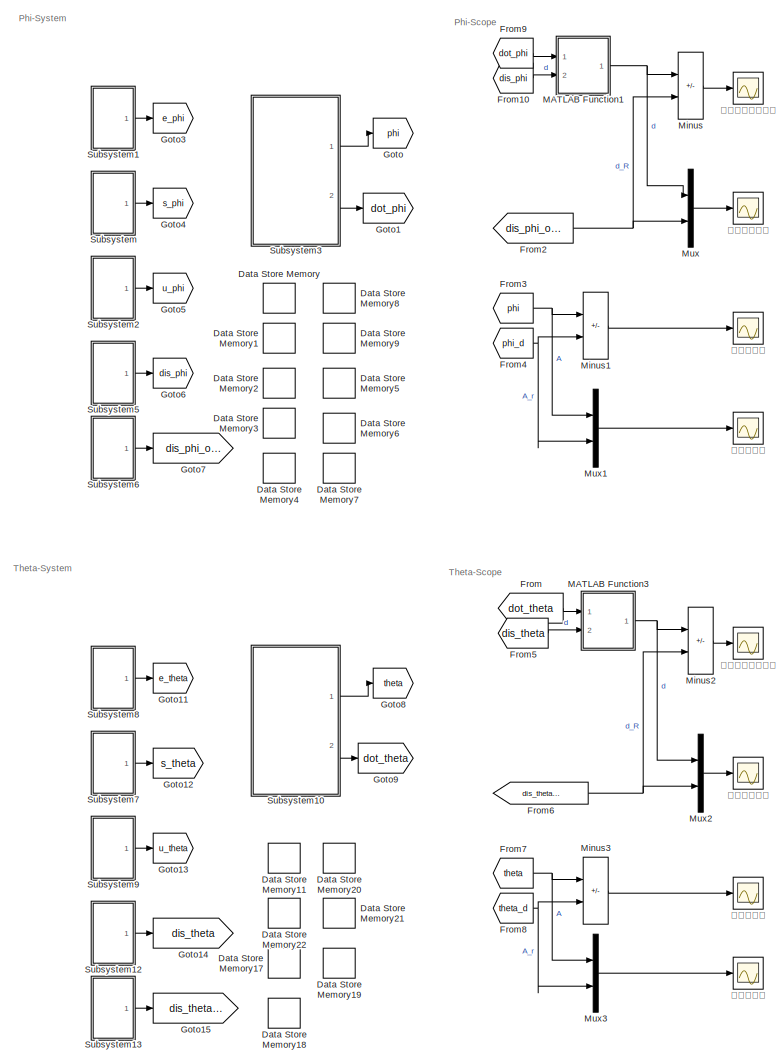
[diagram: root canvas - part 1/2, left side, full height]
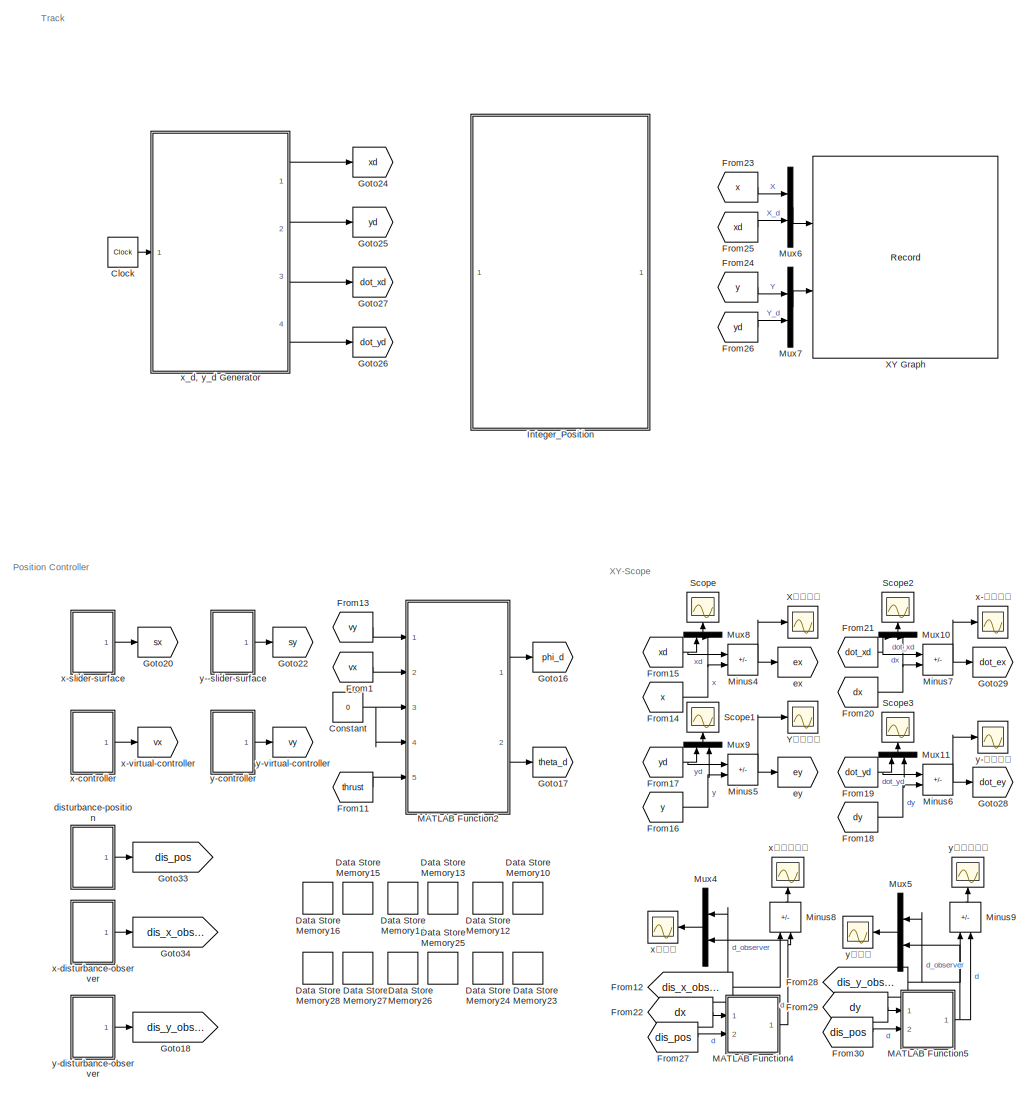
[diagram: root canvas - part 2/2, right side, full height]
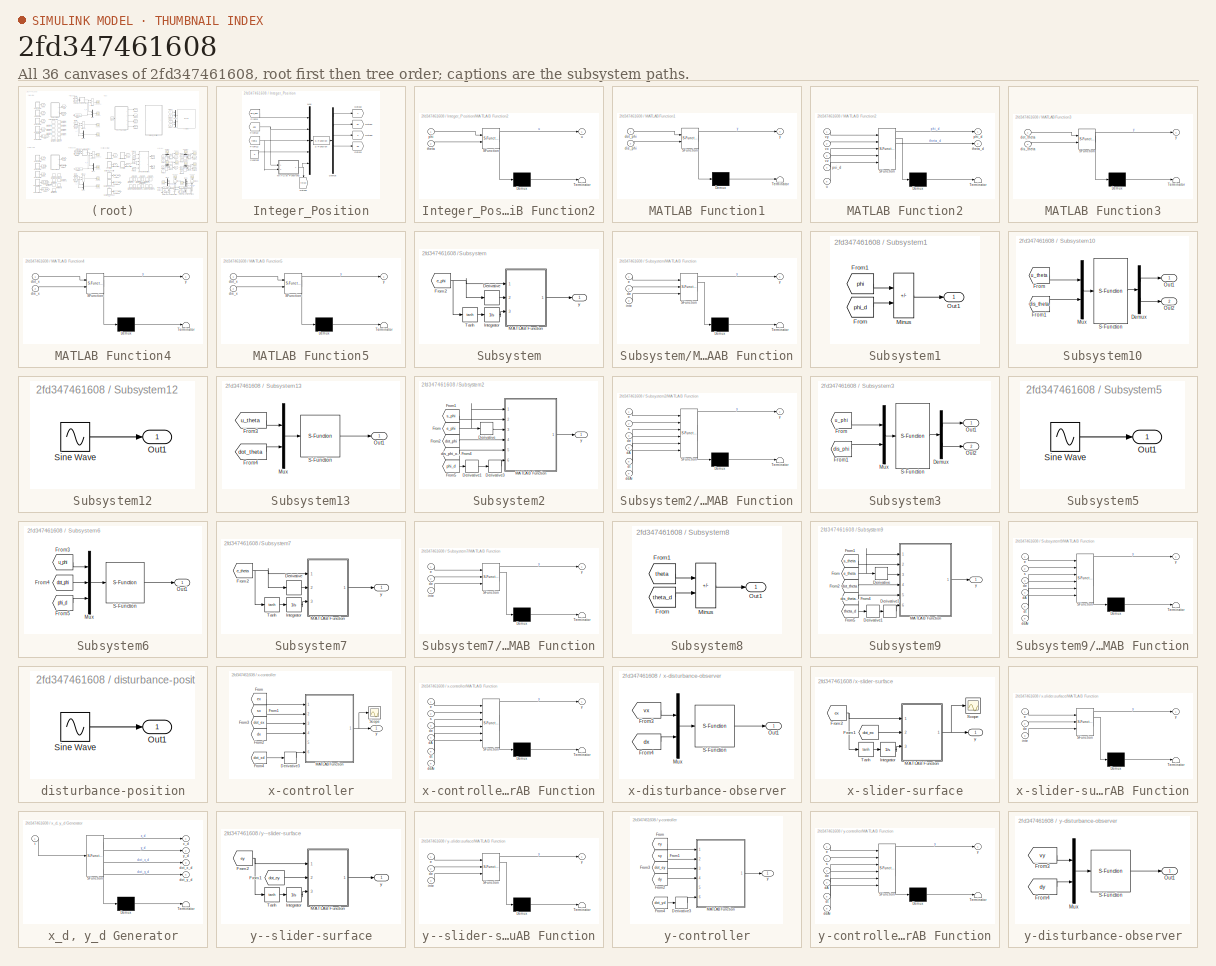
[diagram: thumbnail index - all 36 canvases of the model, root first then tree order]
MODEL slx_2fd347461608
KIND model
CONFIG AbsTol = auto
CONFIG EnableMultiTasking = off
CONFIG FixedStep = 0.01
CONFIG MaxStep = auto
CONFIG MinStep = auto
CONFIG RelTol = 1e-3
CONFIG SampleTimeConstraint = Unconstrained
CONFIG SolverName = ode4
CONFIG StartTime = 0.0
CONFIG StopTime = 25
BLOCK [Clock] Clock
  DisplayTime = on
BLOCK [Constant] Constant
  Value = 0
BLOCK [DataStoreMemory] Data Store Memory
  DataStoreName = K0
  InitialValue = 0.01
  OutDataTypeStr = double
  ReadBeforeWriteMsg = warning
  ShowAdditionalParam = off
  SignalType = real
  WriteAfterReadMsg = warning
  WriteAfterWriteMsg = warning
BLOCK [DataStoreMemory] Data Store Memory1
  DataStoreName = J
  InitialValue = 0.005309688
  OutDataTypeStr = double
  ReadBeforeWriteMsg = warning
  ShowAdditionalParam = off
  SignalType = real
  WriteAfterReadMsg = warning
  WriteAfterWriteMsg = warning
BLOCK [DataStoreMemory] Data Store Memory10
  DataStoreName = xkp
  InitialValue = 1
  NameLocation = left
  OutDataTypeStr = double
  ReadBeforeWriteMsg = warning
  ShowAdditionalParam = off
  SignalType = real
  WriteAfterReadMsg = warning
  WriteAfterWriteMsg = warning
BLOCK [DataStoreMemory] Data Store Memory11
  DataStoreName = J1
  InitialValue = 0.00577
  OutDataTypeStr = double
  ReadBeforeWriteMsg = warning
  ShowAdditionalParam = off
  SignalType = real
  WriteAfterReadMsg = warning
  WriteAfterWriteMsg = warning
BLOCK [DataStoreMemory] Data Store Memory12
  DataStoreName = xki
  NameLocation = left
  OutDataTypeStr = double
  ReadBeforeWriteMsg = warning
  ShowAdditionalParam = off
  SignalType = real
  WriteAfterReadMsg = warning
  WriteAfterWriteMsg = warning
BLOCK [DataStoreMemory] Data Store Memory13
  DataStoreName = xkd
  InitialValue = 1
  NameLocation = left
  OutDataTypeStr = double
  ReadBeforeWriteMsg = warning
  ShowAdditionalParam = off
  SignalType = real
  WriteAfterReadMsg = warning
  WriteAfterWriteMsg = warning
BLOCK [DataStoreMemory] Data Store Memory14
  DataStoreName = xk1
  InitialValue = 1
  NameLocation = left
  OutDataTypeStr = double
  ReadBeforeWriteMsg = warning
  ShowAdditionalParam = off
  SignalType = real
  WriteAfterReadMsg = warning
  WriteAfterWriteMsg = warning
BLOCK [DataStoreMemory] Data Store Memory15
  DataStoreName = xk2
  InitialValue = 100
  NameLocation = left
  OutDataTypeStr = double
  ReadBeforeWriteMsg = warning
  ShowAdditionalParam = off
  SignalType = real
  WriteAfterReadMsg = warning
  WriteAfterWriteMsg = warning
BLOCK [DataStoreMemory] Data Store Memory16
  DataStoreName = xk3
  NameLocation = left
  OutDataTypeStr = double
  ReadBeforeWriteMsg = warning
  ShowAdditionalParam = off
  SignalType = real
  WriteAfterReadMsg = warning
  WriteAfterWriteMsg = warning
BLOCK [DataStoreMemory] Data Store Memory17
  DataStoreName = ki1
  InitialValue = 0.01
  OutDataTypeStr = double
  ReadBeforeWriteMsg = warning
  ShowAdditionalParam = off
  SignalType = real
  WriteAfterReadMsg = warning
  WriteAfterWriteMsg = warning
BLOCK [DataStoreMemory] Data Store Memory18
  DataStoreName = kd1
  InitialValue = 1
  OutDataTypeStr = double
  ReadBeforeWriteMsg = warning
  ShowAdditionalParam = off
  SignalType = real
  WriteAfterReadMsg = warning
  WriteAfterWriteMsg = warning
BLOCK [DataStoreMemory] Data Store Memory19
  DataStoreName = k11
  InitialValue = 1
  OutDataTypeStr = double
  ReadBeforeWriteMsg = warning
  ShowAdditionalParam = off
  SignalType = real
  WriteAfterReadMsg = warning
  WriteAfterWriteMsg = warning
BLOCK [DataStoreMemory] Data Store Memory2
  DataStoreName = l
  InitialValue = 0.33/sqrt(2)
  OutDataTypeStr = double
  ReadBeforeWriteMsg = warning
  ShowAdditionalParam = off
  SignalType = real
  WriteAfterReadMsg = warning
  WriteAfterWriteMsg = warning
BLOCK [DataStoreMemory] Data Store Memory20
  DataStoreName = k21
  InitialValue = 5
  OutDataTypeStr = double
  ReadBeforeWriteMsg = warning
  ShowAdditionalParam = off
  SignalType = real
  WriteAfterReadMsg = warning
  WriteAfterWriteMsg = warning
BLOCK [DataStoreMemory] Data Store Memory21
  DataStoreName = k31
  InitialValue = 0.001
  OutDataTypeStr = double
  ReadBeforeWriteMsg = warning
  ShowAdditionalParam = off
  SignalType = real
  WriteAfterReadMsg = warning
  WriteAfterWriteMsg = warning
BLOCK [DataStoreMemory] Data Store Memory22
  DataStoreName = kp1
  InitialValue = 30
  OutDataTypeStr = double
  ReadBeforeWriteMsg = warning
  ShowAdditionalParam = off
  SignalType = real
  WriteAfterReadMsg = warning
  WriteAfterWriteMsg = warning
BLOCK [DataStoreMemory] Data Store Memory23
  DataStoreName = ykp
  InitialValue = 1
  NameLocation = left
  OutDataTypeStr = double
  ReadBeforeWriteMsg = warning
  ShowAdditionalParam = off
  SignalType = real
  WriteAfterReadMsg = warning
  WriteAfterWriteMsg = warning
BLOCK [DataStoreMemory] Data Store Memory24
  DataStoreName = yki
  NameLocation = left
  OutDataTypeStr = double
  ReadBeforeWriteMsg = warning
  ShowAdditionalParam = off
  SignalType = real
  WriteAfterReadMsg = warning
  WriteAfterWriteMsg = warning
BLOCK [DataStoreMemory] Data Store Memory25
  DataStoreName = ykd
  InitialValue = 1
  NameLocation = left
  OutDataTypeStr = double
  ReadBeforeWriteMsg = warning
  ShowAdditionalParam = off
  SignalType = real
  WriteAfterReadMsg = warning
  WriteAfterWriteMsg = warning
BLOCK [DataStoreMemory] Data Store Memory26
  DataStoreName = yk1
  InitialValue = 1
  NameLocation = left
  OutDataTypeStr = double
  ReadBeforeWriteMsg = warning
  ShowAdditionalParam = off
  SignalType = real
  WriteAfterReadMsg = warning
  WriteAfterWriteMsg = warning
BLOCK [DataStoreMemory] Data Store Memory27
  DataStoreName = yk2
  InitialValue = 100
  NameLocation = left
  OutDataTypeStr = double
  ReadBeforeWriteMsg = warning
  ShowAdditionalParam = off
  SignalType = real
  WriteAfterReadMsg = warning
  WriteAfterWriteMsg = warning
BLOCK [DataStoreMemory] Data Store Memory28
  DataStoreName = yk3
  NameLocation = left
  OutDataTypeStr = double
  ReadBeforeWriteMsg = warning
  ShowAdditionalParam = off
  SignalType = real
  WriteAfterReadMsg = warning
  WriteAfterWriteMsg = warning
BLOCK [DataStoreMemory] Data Store Memory3
  DataStoreName = pi
  InitialValue = 3.1415926
  OutDataTypeStr = double
  ReadBeforeWriteMsg = warning
  ShowAdditionalParam = off
  SignalType = real
  WriteAfterReadMsg = warning
  WriteAfterWriteMsg = warning
BLOCK [DataStoreMemory] Data Store Memory4
  DataStoreName = kp
  InitialValue = 30
  OutDataTypeStr = double
  ReadBeforeWriteMsg = warning
  ShowAdditionalParam = off
  SignalType = real
  WriteAfterReadMsg = warning
  WriteAfterWriteMsg = warning
BLOCK [DataStoreMemory] Data Store Memory5
  DataStoreName = ki
  InitialValue = 0.01
  OutDataTypeStr = double
  ReadBeforeWriteMsg = warning
  ShowAdditionalParam = off
  SignalType = real
  WriteAfterReadMsg = warning
  WriteAfterWriteMsg = warning
BLOCK [DataStoreMemory] Data Store Memory6
  DataStoreName = kd
  InitialValue = 1
  OutDataTypeStr = double
  ReadBeforeWriteMsg = warning
  ShowAdditionalParam = off
  SignalType = real
  WriteAfterReadMsg = warning
  WriteAfterWriteMsg = warning
BLOCK [DataStoreMemory] Data Store Memory7
  DataStoreName = k1
  InitialValue = 1
  OutDataTypeStr = double
  ReadBeforeWriteMsg = warning
  ShowAdditionalParam = off
  SignalType = real
  WriteAfterReadMsg = warning
  WriteAfterWriteMsg = warning
BLOCK [DataStoreMemory] Data Store Memory8
  DataStoreName = k2
  InitialValue = 5
  OutDataTypeStr = double
  ReadBeforeWriteMsg = warning
  ShowAdditionalParam = off
  SignalType = real
  WriteAfterReadMsg = warning
  WriteAfterWriteMsg = warning
BLOCK [DataStoreMemory] Data Store Memory9
  DataStoreName = k3
  InitialValue = 0.001
  OutDataTypeStr = double
  ReadBeforeWriteMsg = warning
  ShowAdditionalParam = off
  SignalType = real
  WriteAfterReadMsg = warning
  WriteAfterWriteMsg = warning
BLOCK [From] From
  GotoTag = dot_theta
  TagVisibility = global
BLOCK [From] From1
  GotoTag = vx
  TagVisibility = global
BLOCK [From] From10
  GotoTag = dis_phi
  TagVisibility = global
BLOCK [From] From11
  GotoTag = thrust
  TagVisibility = global
BLOCK [From] From12
  GotoTag = dis_x_observer
  TagVisibility = global
BLOCK [From] From13
  GotoTag = vy
  TagVisibility = global
BLOCK [From] From14
  GotoTag = x
  TagVisibility = global
BLOCK [From] From15
  GotoTag = xd
  TagVisibility = global
BLOCK [From] From16
  GotoTag = y
  TagVisibility = global
BLOCK [From] From17
  GotoTag = yd
  TagVisibility = global
BLOCK [From] From18
  GotoTag = dy
  TagVisibility = global
BLOCK [From] From19
  GotoTag = dot_yd
  TagVisibility = global
BLOCK [From] From2
  GotoTag = dis_phi_observer
  TagVisibility = global
BLOCK [From] From20
  GotoTag = dx
  TagVisibility = global
BLOCK [From] From21
  GotoTag = dot_xd
  TagVisibility = global
BLOCK [From] From22
  GotoTag = dx
  TagVisibility = global
BLOCK [From] From23
  GotoTag = x
  TagVisibility = global
BLOCK [From] From24
  GotoTag = y
  TagVisibility = global
BLOCK [From] From25
  GotoTag = xd
  TagVisibility = global
BLOCK [From] From26
  GotoTag = yd
  TagVisibility = global
BLOCK [From] From27
  GotoTag = dis_pos
  TagVisibility = global
BLOCK [From] From28
  GotoTag = dis_y_observer
  TagVisibility = global
BLOCK [From] From29
  GotoTag = dy
  TagVisibility = global
BLOCK [From] From3
  GotoTag = phi
  TagVisibility = global
BLOCK [From] From30
  GotoTag = dis_pos
  TagVisibility = global
BLOCK [From] From4
  GotoTag = phi_d
  TagVisibility = global
BLOCK [From] From5
  GotoTag = dis_theta
  TagVisibility = global
BLOCK [From] From6
  GotoTag = dis_theta_observer
  TagVisibility = global
BLOCK [From] From7
  GotoTag = theta
  TagVisibility = global
BLOCK [From] From8
  GotoTag = theta_d
  TagVisibility = global
BLOCK [From] From9
  GotoTag = dot_phi
  TagVisibility = global
BLOCK [Goto] Goto
  GotoTag = phi
  TagVisibility = global
BLOCK [Goto] Goto1
  GotoTag = dot_phi
  TagVisibility = global
BLOCK [Goto] Goto11
  GotoTag = e_theta
  TagVisibility = global
BLOCK [Goto] Goto12
  GotoTag = s_theta
  TagVisibility = global
BLOCK [Goto] Goto13
  GotoTag = u_theta
  TagVisibility = global
BLOCK [Goto] Goto14
  GotoTag = dis_theta
  TagVisibility = global
BLOCK [Goto] Goto15
  GotoTag = dis_theta_observer
  TagVisibility = global
BLOCK [Goto] Goto16
  GotoTag = phi_d
  TagVisibility = global
BLOCK [Goto] Goto17
  GotoTag = theta_d
  TagVisibility = global
BLOCK [Goto] Goto18
  GotoTag = dis_y_observer
  TagVisibility = global
BLOCK [Goto] Goto20
  GotoTag = sx
  TagVisibility = global
BLOCK [Goto] Goto22
  GotoTag = sy
  TagVisibility = global
BLOCK [Goto] Goto24
  GotoTag = xd
  TagVisibility = global
BLOCK [Goto] Goto25
  GotoTag = yd
  TagVisibility = global
BLOCK [Goto] Goto26
  GotoTag = dot_yd
  TagVisibility = global
BLOCK [Goto] Goto27
  GotoTag = dot_xd
  TagVisibility = global
BLOCK [Goto] Goto28
  GotoTag = dot_ey
  TagVisibility = global
BLOCK [Goto] Goto29
  GotoTag = dot_ex
  TagVisibility = global
BLOCK [Goto] Goto3
  GotoTag = e_phi
  TagVisibility = global
BLOCK [Goto] Goto33
  GotoTag = dis_pos
  TagVisibility = global
BLOCK [Goto] Goto34
  GotoTag = dis_x_observer
  TagVisibility = global
BLOCK [Goto] Goto4
  GotoTag = s_phi
  TagVisibility = global
BLOCK [Goto] Goto5
  GotoTag = u_phi
  TagVisibility = global
BLOCK [Goto] Goto6
  GotoTag = dis_phi
  TagVisibility = global
BLOCK [Goto] Goto7
  GotoTag = dis_phi_observer
  TagVisibility = global
BLOCK [Goto] Goto8
  GotoTag = theta
  TagVisibility = global
BLOCK [Goto] Goto9
  GotoTag = dot_theta
  TagVisibility = global
BLOCK [SubSystem] Integer_Position
  Ports = []
  RequestExecContextInheritance = off
BLOCK [Constant] Integer_Position/Constant
  Value = 0
BLOCK [Demux] Integer_Position/Demux
  Outputs = 6
  Ports = [1, 6]
BLOCK [From] Integer_Position/From12
  GotoTag = theta
  TagVisibility = global
BLOCK [From] Integer_Position/From22
  GotoTag = phi
  TagVisibility = global
BLOCK [From] Integer_Position/From5
  GotoTag = dis_pos
  TagVisibility = global
BLOCK [Goto] Integer_Position/Goto18
  GotoTag = y
  TagVisibility = global
BLOCK [Goto] Integer_Position/Goto19
  GotoTag = dx
  TagVisibility = global
BLOCK [Goto] Integer_Position/Goto30
  GotoTag = x
  TagVisibility = global
BLOCK [Goto] Integer_Position/Goto31
  GotoTag = dy
  TagVisibility = global
BLOCK [Goto] Integer_Position/Goto32
  GotoTag = thrust
  NameLocation = left
  TagVisibility = global
BLOCK [SubSystem] Integer_Position/MATLAB Function2
  ErrorFcn = Stateflow.Translate.translate
  PermitHierarchicalResolution = ExplicitOnly
  Ports = [2, 1]
  RequestExecContextInheritance = off
  SFBlockType = MATLAB Function
  TreatAsAtomicUnit = on
BLOCK [Demux] Integer_Position/MATLAB Function2/ Demux 
  Outputs = 1
  Ports = [1, 1]
BLOCK [S-Function] Integer_Position/MATLAB Function2/ SFunction 
  EnableBusSupport = on
  FunctionName = sf_sfun
  PortCounts = [2 2]
  Ports = [2, 2]
  SFcnIsStateOwnerBlock = off
  SFunctionDeploymentMode = off
  Tag = Stateflow S-Function 8
BLOCK [Terminator] Integer_Position/MATLAB Function2/ Terminator 
BLOCK [Inport] Integer_Position/MATLAB Function2/phi
BLOCK [Inport] Integer_Position/MATLAB Function2/theta
  Port = 2
BLOCK [Outport] Integer_Position/MATLAB Function2/u
BLOCK [Mux] Integer_Position/Mux
  DisplayOption = bar
  Inputs = 5
  Ports = [5, 1]
BLOCK [S-Function] Integer_Position/S-Function
  EnableBusSupport = off
  FunctionName = position
  Ports = [1, 1]
  SFcnIsStateOwnerBlock = off
  SFunctionDeploymentMode = off
BLOCK [SubSystem] MATLAB Function1
  ErrorFcn = Stateflow.Translate.translate
  PermitHierarchicalResolution = ExplicitOnly
  Ports = [2, 1]
  RequestExecContextInheritance = off
  SFBlockType = MATLAB Function
  TreatAsAtomicUnit = on
BLOCK [Demux] MATLAB Function1/ Demux 
  Outputs = 1
  Ports = [1, 1]
BLOCK [S-Function] MATLAB Function1/ SFunction 
  EnableBusSupport = on
  FunctionName = sf_sfun
  PortCounts = [2 2]
  Ports = [2, 2]
  SFcnIsStateOwnerBlock = off
  SFunctionDeploymentMode = off
  Tag = Stateflow S-Function 14
BLOCK [Terminator] MATLAB Function1/ Terminator 
BLOCK [Inport] MATLAB Function1/dis_phi
  Port = 2
BLOCK [Inport] MATLAB Function1/dot_phi
BLOCK [Outport] MATLAB Function1/y
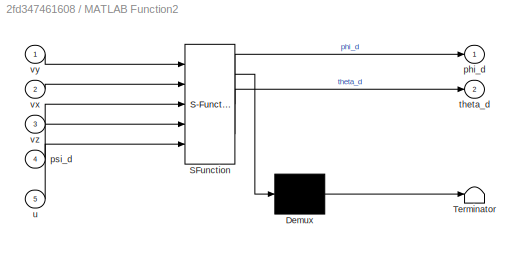
BLOCK [SubSystem] MATLAB Function2
  ErrorFcn = Stateflow.Translate.translate
  PermitHierarchicalResolution = ExplicitOnly
  Ports = [5, 2]
  RequestExecContextInheritance = off
  SFBlockType = MATLAB Function
  TreatAsAtomicUnit = on
BLOCK [Demux] MATLAB Function2/ Demux 
  Outputs = 1
  Ports = [1, 1]
BLOCK [S-Function] MATLAB Function2/ SFunction 
  EnableBusSupport = on
  FunctionName = sf_sfun
  PortCounts = [5 3]
  Ports = [5, 3]
  SFcnIsStateOwnerBlock = off
  SFunctionDeploymentMode = off
  Tag = Stateflow S-Function 10
BLOCK [Terminator] MATLAB Function2/ Terminator 
BLOCK [Outport] MATLAB Function2/phi_d
BLOCK [Inport] MATLAB Function2/psi_d
  Port = 4
BLOCK [Outport] MATLAB Function2/theta_d
  Port = 2
BLOCK [Inport] MATLAB Function2/u
  Port = 5
BLOCK [Inport] MATLAB Function2/vx
  Port = 2
BLOCK [Inport] MATLAB Function2/vy
BLOCK [Inport] MATLAB Function2/vz
  Port = 3
BLOCK [SubSystem] MATLAB Function3
  ErrorFcn = Stateflow.Translate.translate
  PermitHierarchicalResolution = ExplicitOnly
  Ports = [2, 1]
  RequestExecContextInheritance = off
  SFBlockType = MATLAB Function
  TreatAsAtomicUnit = on
BLOCK [Demux] MATLAB Function3/ Demux 
  Outputs = 1
  Ports = [1, 1]
BLOCK [S-Function] MATLAB Function3/ SFunction 
  EnableBusSupport = on
  FunctionName = sf_sfun
  PortCounts = [2 2]
  Ports = [2, 2]
  SFcnIsStateOwnerBlock = off
  SFunctionDeploymentMode = off
  Tag = Stateflow S-Function 13
BLOCK [Terminator] MATLAB Function3/ Terminator 
BLOCK [Inport] MATLAB Function3/dis_theta
  Port = 2
BLOCK [Inport] MATLAB Function3/dot_theta
BLOCK [Outport] MATLAB Function3/y
BLOCK [SubSystem] MATLAB Function4
  ErrorFcn = Stateflow.Translate.translate
  PermitHierarchicalResolution = ExplicitOnly
  Ports = [2, 1]
  RequestExecContextInheritance = off
  SFBlockType = MATLAB Function
  TreatAsAtomicUnit = on
BLOCK [Demux] MATLAB Function4/ Demux 
  Outputs = 1
  Ports = [1, 1]
BLOCK [S-Function] MATLAB Function4/ SFunction 
  EnableBusSupport = on
  FunctionName = sf_sfun
  PortCounts = [2 2]
  Ports = [2, 2]
  SFcnIsStateOwnerBlock = off
  SFunctionDeploymentMode = off
  Tag = Stateflow S-Function 15
BLOCK [Terminator] MATLAB Function4/ Terminator 
BLOCK [Inport] MATLAB Function4/dis_x
  Port = 2
BLOCK [Inport] MATLAB Function4/dot_x
BLOCK [Outport] MATLAB Function4/y
BLOCK [SubSystem] MATLAB Function5
  ErrorFcn = Stateflow.Translate.translate
  PermitHierarchicalResolution = ExplicitOnly
  Ports = [2, 1]
  RequestExecContextInheritance = off
  SFBlockType = MATLAB Function
  TreatAsAtomicUnit = on
BLOCK [Demux] MATLAB Function5/ Demux 
  Outputs = 1
  Ports = [1, 1]
BLOCK [S-Function] MATLAB Function5/ SFunction 
  EnableBusSupport = on
  FunctionName = sf_sfun
  PortCounts = [2 2]
  Ports = [2, 2]
  SFcnIsStateOwnerBlock = off
  SFunctionDeploymentMode = off
  Tag = Stateflow S-Function 16
BLOCK [Terminator] MATLAB Function5/ Terminator 
BLOCK [Inport] MATLAB Function5/dis_x
  Port = 2
BLOCK [Inport] MATLAB Function5/dot_x
BLOCK [Outport] MATLAB Function5/y
BLOCK [Sum] Minus
  IconShape = rectangular
  Inputs = +-
  Ports = [2, 1]
BLOCK [Sum] Minus1
  IconShape = rectangular
  Inputs = +-
  Ports = [2, 1]
BLOCK [Sum] Minus2
  IconShape = rectangular
  Inputs = +-
  Ports = [2, 1]
BLOCK [Sum] Minus3
  IconShape = rectangular
  Inputs = +-
  Ports = [2, 1]
BLOCK [Sum] Minus4
  IconShape = rectangular
  Inputs = +-
  Ports = [2, 1]
BLOCK [Sum] Minus5
  IconShape = rectangular
  Inputs = +-
  Ports = [2, 1]
BLOCK [Sum] Minus6
  IconShape = rectangular
  Inputs = +-
  Ports = [2, 1]
BLOCK [Sum] Minus7
  IconShape = rectangular
  Inputs = +-
  Ports = [2, 1]
BLOCK [Sum] Minus8
  IconShape = rectangular
  Inputs = +-
  NameLocation = right
  Ports = [2, 1]
BLOCK [Sum] Minus9
  IconShape = rectangular
  Inputs = +-
  NameLocation = right
  Ports = [2, 1]
BLOCK [Mux] Mux
  DisplayOption = bar
  Inputs = 2
  Ports = [2, 1]
BLOCK [Mux] Mux1
  DisplayOption = bar
  Inputs = 2
  Ports = [2, 1]
BLOCK [Mux] Mux10
  DisplayOption = bar
  Inputs = 2
  NameLocation = right
  Ports = [2, 1]
BLOCK [Mux] Mux11
  DisplayOption = bar
  Inputs = 2
  NameLocation = right
  Ports = [2, 1]
BLOCK [Mux] Mux2
  DisplayOption = bar
  Inputs = 2
  Ports = [2, 1]
BLOCK [Mux] Mux3
  DisplayOption = bar
  Inputs = 2
  Ports = [2, 1]
BLOCK [Mux] Mux4
  DisplayOption = bar
  Inputs = 2
  NameLocation = top
  Ports = [2, 1]
BLOCK [Mux] Mux5
  DisplayOption = bar
  Inputs = 2
  NameLocation = top
  Ports = [2, 1]
BLOCK [Mux] Mux6
  DisplayOption = bar
  Inputs = 2
  Ports = [2, 1]
BLOCK [Mux] Mux7
  DisplayOption = bar
  Inputs = 2
  Ports = [2, 1]
BLOCK [Mux] Mux8
  DisplayOption = bar
  Inputs = 2
  NameLocation = right
  Ports = [2, 1]
BLOCK [Mux] Mux9
  DisplayOption = bar
  Inputs = 2
  NameLocation = right
  Ports = [2, 1]
BLOCK [Scope] Scope
  Floating = off
  NameLocation = right
  NumInputPorts = 1
  Ports = [1]
  ScopeSpecificationString = Simulink.scopes.TimeScopeBlockCfg('CurrentConfiguration', extmgr.ConfigurationSet(extmgr.Configuration('Core','General UI',true,'FigureColor',[1 1 1]),extmgr.Configuration('Core','Source UI',true),extmgr.Configuration('Sources','WiredSimulink',true,'DataLoggingVariableName','ScopeData1'),extmgr.Configuration('Visuals','Time Domain',true,'SerializedDisplays',{struct('MinYLimReal','-0.50626','MaxYLi...<+1507ch>
BLOCK [Scope] Scope1
  Floating = off
  NameLocation = right
  NumInputPorts = 1
  Ports = [1]
  ScopeSpecificationString = Simulink.scopes.TimeScopeBlockCfg('CurrentConfiguration', extmgr.ConfigurationSet(extmgr.Configuration('Core','General UI',true,'FigureColor',[1 1 1]),extmgr.Configuration('Core','Source UI',true),extmgr.Configuration('Sources','WiredSimulink',true,'DataLoggingVariableName','ScopeData2'),extmgr.Configuration('Visuals','Time Domain',true,'SerializedDisplays',{struct('MinYLimReal','-2.50609','MaxYLi...<+1513ch>
BLOCK [Scope] Scope2
  Floating = off
  NameLocation = right
  NumInputPorts = 1
  Ports = [1]
  ScopeSpecificationString = Simulink.scopes.TimeScopeBlockCfg('CurrentConfiguration', extmgr.ConfigurationSet(extmgr.Configuration('Core','General UI',true,'FigureColor',[1 1 1]),extmgr.Configuration('Core','Source UI',true),extmgr.Configuration('Sources','WiredSimulink',true,'DataLoggingVariableName','ScopeData3'),extmgr.Configuration('Visuals','Time Domain',true,'SerializedDisplays',{struct('MinYLimReal','-0.6291','MaxYLim...<+1543ch>
BLOCK [Scope] Scope3
  Floating = off
  NameLocation = right
  NumInputPorts = 1
  Ports = [1]
  ScopeSpecificationString = Simulink.scopes.TimeScopeBlockCfg('CurrentConfiguration', extmgr.ConfigurationSet(extmgr.Configuration('Core','General UI',true,'FigureColor',[1 1 1]),extmgr.Configuration('Core','Source UI',true),extmgr.Configuration('Sources','WiredSimulink',true,'DataLoggingVariableName','ScopeData4'),extmgr.Configuration('Visuals','Time Domain',true,'SerializedDisplays',{struct('MinYLimReal','-0.66249','MaxYLi...<+1518ch>
BLOCK [SubSystem] Subsystem
  Ports = [0, 1]
  RequestExecContextInheritance = off
BLOCK [Derivative] Subsystem/Derivative
BLOCK [From] Subsystem/From2
  GotoTag = e_phi
  TagVisibility = global
BLOCK [Integrator] Subsystem/Integrator
  Ports = [1, 1]
BLOCK [SubSystem] Subsystem/MATLAB Function
  ErrorFcn = Stateflow.Translate.translate
  PermitHierarchicalResolution = ExplicitOnly
  Ports = [3, 1]
  RequestExecContextInheritance = off
  SFBlockType = MATLAB Function
  TreatAsAtomicUnit = on
BLOCK [Demux] Subsystem/MATLAB Function/ Demux 
  Outputs = 1
  Ports = [1, 1]
BLOCK [S-Function] Subsystem/MATLAB Function/ SFunction 
  EnableBusSupport = on
  FunctionName = sf_sfun
  PortCounts = [3 2]
  Ports = [3, 2]
  SFcnIsStateOwnerBlock = off
  SFunctionDeploymentMode = off
  Tag = Stateflow S-Function 2
BLOCK [Terminator] Subsystem/MATLAB Function/ Terminator 
BLOCK [Inport] Subsystem/MATLAB Function/de
  Port = 2
BLOCK [Inport] Subsystem/MATLAB Function/e
BLOCK [Inport] Subsystem/MATLAB Function/inte
  Port = 3
BLOCK [Outport] Subsystem/MATLAB Function/y
BLOCK [Trigonometry] Subsystem/Tanh
  Operator = tanh
  Ports = [1, 1]
BLOCK [Outport] Subsystem/y
BLOCK [SubSystem] Subsystem1
  Ports = [0, 1]
  RequestExecContextInheritance = off
BLOCK [From] Subsystem1/From
  GotoTag = phi_d
  TagVisibility = global
BLOCK [From] Subsystem1/From1
  GotoTag = phi
  TagVisibility = global
BLOCK [Sum] Subsystem1/Minus
  IconShape = rectangular
  Inputs = -+
  Ports = [2, 1]
BLOCK [Outport] Subsystem1/Out1
BLOCK [SubSystem] Subsystem10
  Ports = [0, 2]
  RequestExecContextInheritance = off
BLOCK [Demux] Subsystem10/Demux
  Outputs = 2
  Ports = [1, 2]
BLOCK [From] Subsystem10/From
  GotoTag = u_theta
  TagVisibility = global
BLOCK [From] Subsystem10/From1
  GotoTag = dis_theta
  TagVisibility = global
BLOCK [Mux] Subsystem10/Mux
  DisplayOption = bar
  Inputs = 2
  Ports = [2, 1]
BLOCK [Outport] Subsystem10/Out1
BLOCK [Outport] Subsystem10/Out2
  Port = 2
BLOCK [S-Function] Subsystem10/S-Function
  EnableBusSupport = off
  FunctionName = theta_model
  Ports = [1, 1]
  SFcnIsStateOwnerBlock = off
  SFunctionDeploymentMode = off
BLOCK [SubSystem] Subsystem12
  Ports = [0, 1]
  RequestExecContextInheritance = off
BLOCK [Outport] Subsystem12/Out1
BLOCK [Sin] Subsystem12/Sine Wave
  Frequency = 100
  Ports = [0, 1]
  SampleTime = 0
BLOCK [SubSystem] Subsystem13
  Ports = [0, 1]
  RequestExecContextInheritance = off
BLOCK [From] Subsystem13/From3
  GotoTag = u_theta
  TagVisibility = global
BLOCK [From] Subsystem13/From4
  GotoTag = dot_theta
  TagVisibility = global
BLOCK [Mux] Subsystem13/Mux
  DisplayOption = bar
  Inputs = 2
  Ports = [2, 1]
BLOCK [Outport] Subsystem13/Out1
BLOCK [S-Function] Subsystem13/S-Function
  EnableBusSupport = off
  FunctionName = DO_theta
  Ports = [1, 1]
  SFcnIsStateOwnerBlock = off
  SFunctionDeploymentMode = off
BLOCK [SubSystem] Subsystem2
  Ports = [0, 1]
  RequestExecContextInheritance = off
BLOCK [Derivative] Subsystem2/Derivative
BLOCK [Derivative] Subsystem2/Derivative1
BLOCK [Derivative] Subsystem2/Derivative3
BLOCK [From] Subsystem2/From
  GotoTag = e_phi
  TagVisibility = global
BLOCK [From] Subsystem2/From1
  GotoTag = s_phi
  TagVisibility = global
BLOCK [From] Subsystem2/From2
  GotoTag = dot_phi
  TagVisibility = global
BLOCK [From] Subsystem2/From4
  GotoTag = dis_phi_observer
  TagVisibility = global
BLOCK [From] Subsystem2/From5
  GotoTag = phi_d
  TagVisibility = global
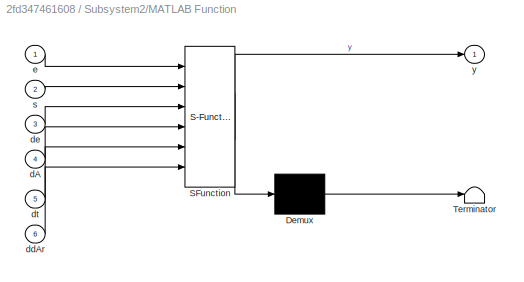
BLOCK [SubSystem] Subsystem2/MATLAB Function
  ErrorFcn = Stateflow.Translate.translate
  PermitHierarchicalResolution = ExplicitOnly
  Ports = [6, 1]
  RequestExecContextInheritance = off
  SFBlockType = MATLAB Function
  TreatAsAtomicUnit = on
BLOCK [Demux] Subsystem2/MATLAB Function/ Demux 
  Outputs = 1
  Ports = [1, 1]
BLOCK [S-Function] Subsystem2/MATLAB Function/ SFunction 
  EnableBusSupport = on
  FunctionName = sf_sfun
  PortCounts = [6 2]
  Ports = [6, 2]
  SFcnIsStateOwnerBlock = off
  SFunctionDeploymentMode = off
  Tag = Stateflow S-Function 1
BLOCK [Terminator] Subsystem2/MATLAB Function/ Terminator 
BLOCK [Inport] Subsystem2/MATLAB Function/dA
  Port = 4
BLOCK [Inport] Subsystem2/MATLAB Function/ddAr
  Port = 6
BLOCK [Inport] Subsystem2/MATLAB Function/de
  Port = 3
BLOCK [Inport] Subsystem2/MATLAB Function/dt
  Port = 5
BLOCK [Inport] Subsystem2/MATLAB Function/e
BLOCK [Inport] Subsystem2/MATLAB Function/s
  Port = 2
BLOCK [Outport] Subsystem2/MATLAB Function/y
BLOCK [Outport] Subsystem2/y
BLOCK [SubSystem] Subsystem3
  Ports = [0, 2]
  RequestExecContextInheritance = off
BLOCK [Demux] Subsystem3/Demux
  Outputs = 2
  Ports = [1, 2]
BLOCK [From] Subsystem3/From
  GotoTag = u_phi
  TagVisibility = global
BLOCK [From] Subsystem3/From1
  GotoTag = dis_phi
  TagVisibility = global
BLOCK [Mux] Subsystem3/Mux
  DisplayOption = bar
  Inputs = 2
  Ports = [2, 1]
BLOCK [Outport] Subsystem3/Out1
BLOCK [Outport] Subsystem3/Out2
  Port = 2
BLOCK [S-Function] Subsystem3/S-Function
  EnableBusSupport = off
  FunctionName = phi_model
  Ports = [1, 1]
  SFcnIsStateOwnerBlock = off
  SFunctionDeploymentMode = off
BLOCK [SubSystem] Subsystem5
  Ports = [0, 1]
  RequestExecContextInheritance = off
BLOCK [Outport] Subsystem5/Out1
BLOCK [Sin] Subsystem5/Sine Wave
  Frequency = 100
  Ports = [0, 1]
  SampleTime = 0
BLOCK [SubSystem] Subsystem6
  Ports = [0, 1]
  RequestExecContextInheritance = off
BLOCK [From] Subsystem6/From3
  GotoTag = u_phi
  TagVisibility = global
BLOCK [From] Subsystem6/From4
  GotoTag = dot_phi
  TagVisibility = global
BLOCK [From] Subsystem6/From5
  GotoTag = phi_d
  TagVisibility = global
BLOCK [Mux] Subsystem6/Mux
  DisplayOption = bar
  Inputs = 3
  Ports = [3, 1]
BLOCK [Outport] Subsystem6/Out1
BLOCK [S-Function] Subsystem6/S-Function
  EnableBusSupport = off
  FunctionName = DO_phi
  Ports = [1, 1]
  SFcnIsStateOwnerBlock = off
  SFunctionDeploymentMode = off
BLOCK [SubSystem] Subsystem7
  Ports = [0, 1]
  RequestExecContextInheritance = off
BLOCK [Derivative] Subsystem7/Derivative
BLOCK [From] Subsystem7/From2
  GotoTag = e_theta
  TagVisibility = global
BLOCK [Integrator] Subsystem7/Integrator
  Ports = [1, 1]
BLOCK [SubSystem] Subsystem7/MATLAB Function
  ErrorFcn = Stateflow.Translate.translate
  PermitHierarchicalResolution = ExplicitOnly
  Ports = [3, 1]
  RequestExecContextInheritance = off
  SFBlockType = MATLAB Function
  TreatAsAtomicUnit = on
BLOCK [Demux] Subsystem7/MATLAB Function/ Demux 
  Outputs = 1
  Ports = [1, 1]
BLOCK [S-Function] Subsystem7/MATLAB Function/ SFunction 
  EnableBusSupport = on
  FunctionName = sf_sfun
  PortCounts = [3 2]
  Ports = [3, 2]
  SFcnIsStateOwnerBlock = off
  SFunctionDeploymentMode = off
  Tag = Stateflow S-Function 3
BLOCK [Terminator] Subsystem7/MATLAB Function/ Terminator 
BLOCK [Inport] Subsystem7/MATLAB Function/de
  Port = 2
BLOCK [Inport] Subsystem7/MATLAB Function/e
BLOCK [Inport] Subsystem7/MATLAB Function/inte
  Port = 3
BLOCK [Outport] Subsystem7/MATLAB Function/y
BLOCK [Trigonometry] Subsystem7/Tanh
  Operator = tanh
  Ports = [1, 1]
BLOCK [Outport] Subsystem7/y
BLOCK [SubSystem] Subsystem8
  Ports = [0, 1]
  RequestExecContextInheritance = off
BLOCK [From] Subsystem8/From
  GotoTag = theta_d
  TagVisibility = global
BLOCK [From] Subsystem8/From1
  GotoTag = theta
  TagVisibility = global
BLOCK [Sum] Subsystem8/Minus
  IconShape = rectangular
  Inputs = -+
  Ports = [2, 1]
BLOCK [Outport] Subsystem8/Out1
BLOCK [SubSystem] Subsystem9
  Ports = [0, 1]
  RequestExecContextInheritance = off
BLOCK [Derivative] Subsystem9/Derivative
BLOCK [Derivative] Subsystem9/Derivative1
BLOCK [Derivative] Subsystem9/Derivative3
BLOCK [From] Subsystem9/From
  GotoTag = e_theta
  TagVisibility = global
BLOCK [From] Subsystem9/From1
  GotoTag = s_theta
  TagVisibility = global
BLOCK [From] Subsystem9/From2
  GotoTag = dot_theta
  TagVisibility = global
BLOCK [From] Subsystem9/From4
  GotoTag = dis_theta_observer
  TagVisibility = global
BLOCK [From] Subsystem9/From5
  GotoTag = theta_d
  TagVisibility = global
BLOCK [SubSystem] Subsystem9/MATLAB Function
  ErrorFcn = Stateflow.Translate.translate
  PermitHierarchicalResolution = ExplicitOnly
  Ports = [6, 1]
  RequestExecContextInheritance = off
  SFBlockType = MATLAB Function
  TreatAsAtomicUnit = on
BLOCK [Demux] Subsystem9/MATLAB Function/ Demux 
  Outputs = 1
  Ports = [1, 1]
BLOCK [S-Function] Subsystem9/MATLAB Function/ SFunction 
  EnableBusSupport = on
  FunctionName = sf_sfun
  PortCounts = [6 2]
  Ports = [6, 2]
  SFcnIsStateOwnerBlock = off
  SFunctionDeploymentMode = off
  Tag = Stateflow S-Function 4
BLOCK [Terminator] Subsystem9/MATLAB Function/ Terminator 
BLOCK [Inport] Subsystem9/MATLAB Function/dA
  Port = 4
BLOCK [Inport] Subsystem9/MATLAB Function/ddAr
  Port = 6
BLOCK [Inport] Subsystem9/MATLAB Function/de
  Port = 3
BLOCK [Inport] Subsystem9/MATLAB Function/dt
  Port = 5
BLOCK [Inport] Subsystem9/MATLAB Function/e
BLOCK [Inport] Subsystem9/MATLAB Function/s
  Port = 2
BLOCK [Outport] Subsystem9/MATLAB Function/y
BLOCK [Outport] Subsystem9/y
BLOCK [Record] XY Graph
  CompatibilityTag = XY
  FileSettingsInternal = {"entries":[{"content":{"excelSettings":{"content":{},"type":"Streamout.ExcelSettings"}},"type":"Streamout.FileSettingStorage","uuid":"cb515a56-81c6-47bd-8ef5-eec051ca2d3d"}],"packageUris":["http://schema.mathworks.com/mf0/streamout_blocks/R2020a"],"version":"1.0"}
  Layout = [1 1]
  Ports = [2]
  RecordToWorkspace = on
  SignalsInternal = {"entries":[{"content":{"signals":[{"content":{"blockPath":["Trajactory_uav/XY Graph"],"channel":[],"dimensions":[2],"domain":"Trajactory_uav/XY Graph","hasChildren":true,"lineColor":"#0072bd","plots":[],"port":1,"sid":[""],"signalID":412,"signalName":"Mux6"},"type":"RecordBlkView.Signal","uuid":"3dcd1e12-03f3-405f-916b-5c80faeb8bef"},{"content":{"blockPath":["Trajactory_uav/XY Graph"],"channel":[...<+1615ch>
  VisualizationBindings = {"xyplotplugin":{"info":[{"series":[{"bindingParametersList":[{"parameter":"X-Axis","signalID":413,"signalName":"Mux6(1)"},{"parameter":"Y-Axis","signalID":418,"signalName":"Mux7(1)"}],"seriesID":8627},{"bindingParametersList":[{"parameter":"X-Axis","signalID":431,"signalName":"Mux6(2)"},{"parameter":"Y-Axis","signalID":432,"signalName":"Mux7(2)"}],"seriesID":43199}],"subplotID":1}]}}
BLOCK [Scope] X位置误差
  Floating = off
  NumInputPorts = 1
  Ports = [1]
  ScopeSpecificationString = Simulink.scopes.TimeScopeBlockCfg('CurrentConfiguration', extmgr.ConfigurationSet(extmgr.Configuration('Core','General UI',true),extmgr.Configuration('Core','Source UI',true),extmgr.Configuration('Sources','WiredSimulink',true,'DataLoggingVariableName','ScopeData9'),extmgr.Configuration('Visuals','Time Domain',true,'SerializedDisplays',{struct('MinYLimReal','-0.01035','MaxYLimReal','0.00887','YLab...<+1553ch>
BLOCK [Scope] Y位置误差
  Floating = off
  NumInputPorts = 1
  Ports = [1]
  ScopeSpecificationString = Simulink.scopes.TimeScopeBlockCfg('CurrentConfiguration', extmgr.ConfigurationSet(extmgr.Configuration('Core','General UI',true),extmgr.Configuration('Core','Source UI',true),extmgr.Configuration('Sources','WiredSimulink',true,'DataLoggingVariableName','ScopeData10'),extmgr.Configuration('Visuals','Time Domain',true,'SerializedDisplays',{struct('MinYLimReal','-0.02773','MaxYLimReal','0.17971','YLa...<+1556ch>
BLOCK [SubSystem] disturbance-position
  Ports = [0, 1]
  RequestExecContextInheritance = off
BLOCK [Outport] disturbance-position/Out1
BLOCK [Sin] disturbance-position/Sine Wave
  Ports = [0, 1]
  SampleTime = 0
BLOCK [Goto] ex
  GotoTag = ex
  TagVisibility = global
BLOCK [Goto] ey
  GotoTag = ey
  TagVisibility = global
BLOCK [SubSystem] x-controller
  Ports = [0, 1]
  RequestExecContextInheritance = off
BLOCK [Derivative] x-controller/Derivative3
BLOCK [From] x-controller/From
  GotoTag = ex
  TagVisibility = global
BLOCK [From] x-controller/From1
  GotoTag = sx
  TagVisibility = global
BLOCK [From] x-controller/From2
  GotoTag = dx
  TagVisibility = global
BLOCK [From] x-controller/From3
  GotoTag = dot_ex
  TagVisibility = global
BLOCK [From] x-controller/From4
  GotoTag = dot_xd
  TagVisibility = global
BLOCK [SubSystem] x-controller/MATLAB Function
  ErrorFcn = Stateflow.Translate.translate
  PermitHierarchicalResolution = ExplicitOnly
  Ports = [6, 1]
  RequestExecContextInheritance = off
  SFBlockType = MATLAB Function
  TreatAsAtomicUnit = on
BLOCK [Demux] x-controller/MATLAB Function/ Demux 
  Outputs = 1
  Ports = [1, 1]
BLOCK [S-Function] x-controller/MATLAB Function/ SFunction 
  EnableBusSupport = on
  FunctionName = sf_sfun
  PortCounts = [6 2]
  Ports = [6, 2]
  SFcnIsStateOwnerBlock = off
  SFunctionDeploymentMode = off
  Tag = Stateflow S-Function 6
BLOCK [Terminator] x-controller/MATLAB Function/ Terminator 
BLOCK [Inport] x-controller/MATLAB Function/dA
  Port = 4
BLOCK [Inport] x-controller/MATLAB Function/ddAr
  Port = 6
BLOCK [Inport] x-controller/MATLAB Function/de
  Port = 3
BLOCK [Inport] x-controller/MATLAB Function/dt
  Port = 5
BLOCK [Inport] x-controller/MATLAB Function/e
BLOCK [Inport] x-controller/MATLAB Function/s
  Port = 2
BLOCK [Outport] x-controller/MATLAB Function/y
BLOCK [Scope] x-controller/Scope
  Floating = off
  NumInputPorts = 1
  Ports = [1]
  ScopeSpecificationString = Simulink.scopes.TimeScopeBlockCfg('CurrentConfiguration', extmgr.ConfigurationSet(extmgr.Configuration('Core','General UI',true),extmgr.Configuration('Core','Source UI',true),extmgr.Configuration('Sources','WiredSimulink',true,'DataLoggingVariableName','ScopeData9'),extmgr.Configuration('Visuals','Time Domain',true,'SerializedDisplays',{struct('MinYLimReal','-22.98669','MaxYLimReal','114.7763','YL...<+1380ch>
BLOCK [Outport] x-controller/y
BLOCK [SubSystem] x-disturbance-observer
  Ports = [0, 1]
  RequestExecContextInheritance = off
BLOCK [From] x-disturbance-observer/From3
  GotoTag = vx
  TagVisibility = global
BLOCK [From] x-disturbance-observer/From4
  GotoTag = dx
  TagVisibility = global
BLOCK [Mux] x-disturbance-observer/Mux
  DisplayOption = bar
  Inputs = 2
  Ports = [2, 1]
BLOCK [Outport] x-disturbance-observer/Out1
BLOCK [S-Function] x-disturbance-observer/S-Function
  EnableBusSupport = off
  FunctionName = DO_x
  Ports = [1, 1]
  SFcnIsStateOwnerBlock = off
  SFunctionDeploymentMode = off
BLOCK [SubSystem] x-slider-surface
  Ports = [0, 1]
  RequestExecContextInheritance = off
BLOCK [From] x-slider-surface/From1
  GotoTag = dot_ex
  TagVisibility = global
BLOCK [From] x-slider-surface/From2
  GotoTag = ex
  TagVisibility = global
BLOCK [Integrator] x-slider-surface/Integrator
  Ports = [1, 1]
BLOCK [SubSystem] x-slider-surface/MATLAB Function
  ErrorFcn = Stateflow.Translate.translate
  PermitHierarchicalResolution = ExplicitOnly
  Ports = [3, 1]
  RequestExecContextInheritance = off
  SFBlockType = MATLAB Function
  TreatAsAtomicUnit = on
BLOCK [Demux] x-slider-surface/MATLAB Function/ Demux 
  Outputs = 1
  Ports = [1, 1]
BLOCK [S-Function] x-slider-surface/MATLAB Function/ SFunction 
  EnableBusSupport = on
  FunctionName = sf_sfun
  PortCounts = [3 2]
  Ports = [3, 2]
  SFcnIsStateOwnerBlock = off
  SFunctionDeploymentMode = off
  Tag = Stateflow S-Function 5
BLOCK [Terminator] x-slider-surface/MATLAB Function/ Terminator 
BLOCK [Inport] x-slider-surface/MATLAB Function/de
  Port = 2
BLOCK [Inport] x-slider-surface/MATLAB Function/e
BLOCK [Inport] x-slider-surface/MATLAB Function/inte
  Port = 3
BLOCK [Outport] x-slider-surface/MATLAB Function/y
BLOCK [Scope] x-slider-surface/Scope
  Floating = off
  NumInputPorts = 1
  Ports = [1]
  ScopeSpecificationString = Simulink.scopes.TimeScopeBlockCfg('CurrentConfiguration', extmgr.ConfigurationSet(extmgr.Configuration('Core','General UI',true),extmgr.Configuration('Core','Source UI',true),extmgr.Configuration('Sources','WiredSimulink',true,'DataLoggingVariableName','ScopeData8'),extmgr.Configuration('Visuals','Time Domain',true,'SerializedDisplays',{struct('MinYLimReal','-0.22627','MaxYLimReal','1.13625','YLab...<+1374ch>
BLOCK [Trigonometry] x-slider-surface/Tanh
  Operator = tanh
  Ports = [1, 1]
BLOCK [Outport] x-slider-surface/y
BLOCK [Goto] x-virtual-controller
  GotoTag = vx
  TagVisibility = global
BLOCK [Scope] x-速度误差
  Floating = off
  NumInputPorts = 1
  Ports = [1]
  ScopeSpecificationString = Simulink.scopes.TimeScopeBlockCfg('CurrentConfiguration', extmgr.ConfigurationSet(extmgr.Configuration('Core','General UI',true),extmgr.Configuration('Core','Source UI',true),extmgr.Configuration('Sources','WiredSimulink',true,'DataLoggingVariableName','ScopeData6'),extmgr.Configuration('Visuals','Time Domain',true,'SerializedDisplays',{struct('MinYLimReal','-0.11296','MaxYLimReal','0.02445','YLab...<+1526ch>
BLOCK [SubSystem] x_d, y_d Generator
  ErrorFcn = Stateflow.Translate.translate
  PermitHierarchicalResolution = ExplicitOnly
  Ports = [1, 4]
  RequestExecContextInheritance = off
  SFBlockType = MATLAB Function
  TreatAsAtomicUnit = on
BLOCK [Demux] x_d, y_d Generator/ Demux 
  Outputs = 1
  Ports = [1, 1]
BLOCK [S-Function] x_d, y_d Generator/ SFunction 
  EnableBusSupport = on
  FunctionName = sf_sfun
  PortCounts = [1 5]
  Ports = [1, 5]
  SFcnIsStateOwnerBlock = off
  SFunctionDeploymentMode = off
  Tag = Stateflow S-Function 9
BLOCK [Terminator] x_d, y_d Generator/ Terminator 
BLOCK [Outport] x_d, y_d Generator/dot_x_d
  Port = 3
BLOCK [Outport] x_d, y_d Generator/dot_y_d
  Port = 4
BLOCK [Inport] x_d, y_d Generator/t
BLOCK [Outport] x_d, y_d Generator/x_d
BLOCK [Outport] x_d, y_d Generator/y_d
  Port = 2
BLOCK [Scope] x观测器
  Floating = off
  NameLocation = top
  NumInputPorts = 1
  Ports = [1]
  ScopeSpecificationString = Simulink.scopes.TimeScopeBlockCfg('CurrentConfiguration', extmgr.ConfigurationSet(extmgr.Configuration('Core','General UI',true,'FigureColor',[1 1 1]),extmgr.Configuration('Core','Source UI',true),extmgr.Configuration('Sources','WiredSimulink',true,'DataLoggingVariableName','ScopeData3'),extmgr.Configuration('Visuals','Time Domain',true,'SerializedDisplays',{struct('MinYLimReal','-1.47823','MaxYLi...<+1659ch>
BLOCK [Scope] x观测器误差
  Floating = off
  NameLocation = right
  NumInputPorts = 1
  Ports = [1]
  ScopeSpecificationString = Simulink.scopes.TimeScopeBlockCfg('CurrentConfiguration', extmgr.ConfigurationSet(extmgr.Configuration('Core','General UI',true),extmgr.Configuration('Core','Source UI',true),extmgr.Configuration('Sources','WiredSimulink',true,'DataLoggingVariableName','ScopeData4'),extmgr.Configuration('Visuals','Time Domain',true,'SerializedDisplays',{struct('MinYLimReal','-0.37841','MaxYLimReal','1.59486','YLab...<+1437ch>
BLOCK [SubSystem] y--slider-surface
  Ports = [0, 1]
  RequestExecContextInheritance = off
BLOCK [From] y--slider-surface/From1
  GotoTag = dot_ey
  TagVisibility = global
BLOCK [From] y--slider-surface/From2
  GotoTag = ey
  TagVisibility = global
BLOCK [Integrator] y--slider-surface/Integrator
  Ports = [1, 1]
BLOCK [SubSystem] y--slider-surface/MATLAB Function
  ErrorFcn = Stateflow.Translate.translate
  PermitHierarchicalResolution = ExplicitOnly
  Ports = [3, 1]
  RequestExecContextInheritance = off
  SFBlockType = MATLAB Function
  TreatAsAtomicUnit = on
BLOCK [Demux] y--slider-surface/MATLAB Function/ Demux 
  Outputs = 1
  Ports = [1, 1]
BLOCK [S-Function] y--slider-surface/MATLAB Function/ SFunction 
  EnableBusSupport = on
  FunctionName = sf_sfun
  PortCounts = [3 2]
  Ports = [3, 2]
  SFcnIsStateOwnerBlock = off
  SFunctionDeploymentMode = off
  Tag = Stateflow S-Function 11
BLOCK [Terminator] y--slider-surface/MATLAB Function/ Terminator 
BLOCK [Inport] y--slider-surface/MATLAB Function/de
  Port = 2
BLOCK [Inport] y--slider-surface/MATLAB Function/e
BLOCK [Inport] y--slider-surface/MATLAB Function/inte
  Port = 3
BLOCK [Outport] y--slider-surface/MATLAB Function/y
BLOCK [Trigonometry] y--slider-surface/Tanh
  Operator = tanh
  Ports = [1, 1]
BLOCK [Outport] y--slider-surface/y
BLOCK [SubSystem] y-controller
  Ports = [0, 1]
  RequestExecContextInheritance = off
BLOCK [Derivative] y-controller/Derivative3
BLOCK [From] y-controller/From
  GotoTag = ey
  TagVisibility = global
BLOCK [From] y-controller/From1
  GotoTag = sy
  TagVisibility = global
BLOCK [From] y-controller/From2
  GotoTag = dy
  TagVisibility = global
BLOCK [From] y-controller/From3
  GotoTag = dot_ey
  TagVisibility = global
BLOCK [From] y-controller/From4
  GotoTag = dot_yd
  TagVisibility = global
BLOCK [SubSystem] y-controller/MATLAB Function
  ErrorFcn = Stateflow.Translate.translate
  PermitHierarchicalResolution = ExplicitOnly
  Ports = [6, 1]
  RequestExecContextInheritance = off
  SFBlockType = MATLAB Function
  TreatAsAtomicUnit = on
BLOCK [Demux] y-controller/MATLAB Function/ Demux 
  Outputs = 1
  Ports = [1, 1]
BLOCK [S-Function] y-controller/MATLAB Function/ SFunction 
  EnableBusSupport = on
  FunctionName = sf_sfun
  PortCounts = [6 2]
  Ports = [6, 2]
  SFcnIsStateOwnerBlock = off
  SFunctionDeploymentMode = off
  Tag = Stateflow S-Function 12
BLOCK [Terminator] y-controller/MATLAB Function/ Terminator 
BLOCK [Inport] y-controller/MATLAB Function/dA
  Port = 4
BLOCK [Inport] y-controller/MATLAB Function/ddAr
  Port = 6
BLOCK [Inport] y-controller/MATLAB Function/de
  Port = 3
BLOCK [Inport] y-controller/MATLAB Function/dt
  Port = 5
BLOCK [Inport] y-controller/MATLAB Function/e
BLOCK [Inport] y-controller/MATLAB Function/s
  Port = 2
BLOCK [Outport] y-controller/MATLAB Function/y
BLOCK [Outport] y-controller/y
BLOCK [SubSystem] y-disturbance-observer
  Ports = [0, 1]
  RequestExecContextInheritance = off
BLOCK [From] y-disturbance-observer/From3
  GotoTag = vy
  TagVisibility = global
BLOCK [From] y-disturbance-observer/From4
  GotoTag = dy
  TagVisibility = global
BLOCK [Mux] y-disturbance-observer/Mux
  DisplayOption = bar
  Inputs = 2
  Ports = [2, 1]
BLOCK [Outport] y-disturbance-observer/Out1
BLOCK [S-Function] y-disturbance-observer/S-Function
  EnableBusSupport = off
  FunctionName = DO_x
  Ports = [1, 1]
  SFcnIsStateOwnerBlock = off
  SFunctionDeploymentMode = off
BLOCK [Goto] y-virtual-controller
  GotoTag = vy
  TagVisibility = global
BLOCK [Scope] y-速度误差
  Floating = off
  NumInputPorts = 1
  Ports = [1]
  ScopeSpecificationString = Simulink.scopes.TimeScopeBlockCfg('CurrentConfiguration', extmgr.ConfigurationSet(extmgr.Configuration('Core','General UI',true),extmgr.Configuration('Core','Source UI',true),extmgr.Configuration('Sources','WiredSimulink',true,'DataLoggingVariableName','ScopeData10'),extmgr.Configuration('Visuals','Time Domain',true,'SerializedDisplays',{struct('MinYLimReal','-0.40273','MaxYLimReal','0.87327','YLa...<+1529ch>
BLOCK [Scope] y观测器
  Floating = off
  NameLocation = top
  NumInputPorts = 1
  Ports = [1]
  ScopeSpecificationString = Simulink.scopes.TimeScopeBlockCfg('CurrentConfiguration', extmgr.ConfigurationSet(extmgr.Configuration('Core','General UI',true,'FigureColor',[1 1 1]),extmgr.Configuration('Core','Source UI',true),extmgr.Configuration('Sources','WiredSimulink',true,'DataLoggingVariableName','ScopeData5'),extmgr.Configuration('Visuals','Time Domain',true,'SerializedDisplays',{struct('MinYLimReal','-45.02754','MaxYL...<+1665ch>
BLOCK [Scope] y观测器误差
  Floating = off
  NameLocation = right
  NumInputPorts = 1
  Ports = [1]
  ScopeSpecificationString = Simulink.scopes.TimeScopeBlockCfg('CurrentConfiguration', extmgr.ConfigurationSet(extmgr.Configuration('Core','General UI',true),extmgr.Configuration('Core','Source UI',true),extmgr.Configuration('Sources','WiredSimulink',true,'DataLoggingVariableName','ScopeData6'),extmgr.Configuration('Visuals','Time Domain',true,'SerializedDisplays',{struct('MinYLimReal','-52.08366','MaxYLimReal','14.58325','YL...<+1443ch>
BLOCK [Scope] 俯仰角曲线
  Floating = off
  NumInputPorts = 1
  Ports = [1]
  ScopeSpecificationString = Simulink.scopes.TimeScopeBlockCfg('CurrentConfiguration', extmgr.ConfigurationSet(extmgr.Configuration('Core','General UI',true,'FigureColor',[1 1 1]),extmgr.Configuration('Core','Source UI',true),extmgr.Configuration('Sources','WiredSimulink',true,'DataLoggingVariableName','ScopeData4'),extmgr.Configuration('Visuals','Time Domain',true,'SerializedDisplays',{struct('MinYLimReal','-0.57561','MaxYLi...<+1776ch>
BLOCK [Scope] 俯仰角观测器
  Floating = off
  NumInputPorts = 1
  Ports = [1]
  ScopeSpecificationString = Simulink.scopes.TimeScopeBlockCfg('CurrentConfiguration', extmgr.ConfigurationSet(extmgr.Configuration('Core','General UI',true,'FigureColor',[1 1 1]),extmgr.Configuration('Core','Source UI',true),extmgr.Configuration('Sources','WiredSimulink',true,'DataLoggingVariableName','ScopeData2'),extmgr.Configuration('Visuals','Time Domain',true,'SerializedDisplays',{struct('MinYLimReal','-1.6491','MaxYLim...<+1676ch>
BLOCK [Scope] 俯仰角观测器误差
  Floating = off
  NumInputPorts = 1
  Ports = [1]
  ScopeSpecificationString = Simulink.scopes.TimeScopeBlockCfg('CurrentConfiguration', extmgr.ConfigurationSet(extmgr.Configuration('Core','General UI',true),extmgr.Configuration('Core','Source UI',true),extmgr.Configuration('Sources','WiredSimulink',true,'DataLoggingVariableName','ScopeData1'),extmgr.Configuration('Visuals','Time Domain',true,'SerializedDisplays',{struct('MinYLimReal','-0.14815','MaxYLimReal','0.13763','YLab...<+1438ch>
BLOCK [Scope] 俯仰角误差
  Floating = off
  NumInputPorts = 1
  Ports = [1]
  ScopeSpecificationString = Simulink.scopes.TimeScopeBlockCfg('CurrentConfiguration', extmgr.ConfigurationSet(extmgr.Configuration('Core','General UI',true),extmgr.Configuration('Core','Source UI',true),extmgr.Configuration('Sources','WiredSimulink',true,'DataLoggingVariableName','ScopeData3'),extmgr.Configuration('Visuals','Time Domain',true,'SerializedDisplays',{struct('MinYLimReal','-1.5333','MaxYLimReal','1.28414','YLabe...<+1386ch>
BLOCK [Scope] 翻滚角曲线
  Floating = off
  NumInputPorts = 1
  Ports = [1]
  ScopeSpecificationString = Simulink.scopes.TimeScopeBlockCfg('CurrentConfiguration', extmgr.ConfigurationSet(extmgr.Configuration('Core','General UI',true,'FigureColor',[1 1 1]),extmgr.Configuration('Core','Source UI',true),extmgr.Configuration('Sources','WiredSimulink',true,'DataLoggingVariableName','ScopeData4'),extmgr.Configuration('Visuals','Time Domain',true,'SerializedDisplays',{struct('MinYLimReal','-1.21683','MaxYLi...<+1715ch>
BLOCK [Scope] 翻滚角观测器
  Floating = off
  NumInputPorts = 1
  Ports = [1]
  ScopeSpecificationString = Simulink.scopes.TimeScopeBlockCfg('CurrentConfiguration', extmgr.ConfigurationSet(extmgr.Configuration('Core','General UI',true,'FigureColor',[1 1 1]),extmgr.Configuration('Core','Source UI',true),extmgr.Configuration('Sources','WiredSimulink',true,'DataLoggingVariableName','ScopeData2'),extmgr.Configuration('Visuals','Time Domain',true,'SerializedDisplays',{struct('MinYLimReal','-1.32293','MaxYLi...<+1656ch>
BLOCK [Scope] 翻滚角观测器误差
  Floating = off
  NumInputPorts = 1
  Ports = [1]
  ScopeSpecificationString = Simulink.scopes.TimeScopeBlockCfg('CurrentConfiguration', extmgr.ConfigurationSet(extmgr.Configuration('Core','General UI',true),extmgr.Configuration('Core','Source UI',true),extmgr.Configuration('Sources','WiredSimulink',true,'DataLoggingVariableName','ScopeData1'),extmgr.Configuration('Visuals','Time Domain',true,'SerializedDisplays',{struct('MinYLimReal','-0.41517','MaxYLimReal','0.40577','YLab...<+1438ch>
BLOCK [Scope] 翻滚角误差
  Floating = off
  NumInputPorts = 1
  Ports = [1]
  ScopeSpecificationString = Simulink.scopes.TimeScopeBlockCfg('CurrentConfiguration', extmgr.ConfigurationSet(extmgr.Configuration('Core','General UI',true),extmgr.Configuration('Core','Source UI',true),extmgr.Configuration('Sources','WiredSimulink',true,'DataLoggingVariableName','ScopeData3'),extmgr.Configuration('Visuals','Time Domain',true,'SerializedDisplays',{struct('MinYLimReal','-3.26805','MaxYLimReal','3.27199','YLab...<+1409ch>
ANNOTATION (root): Phi-Scope
ANNOTATION (root): Phi-System
ANNOTATION (root): Position Controller
ANNOTATION (root): Theta-Scope
ANNOTATION (root): Theta-System
ANNOTATION (root): Track
ANNOTATION (root): XY-Scope
LINE Clock:1 -> x_d, y_d Generator:1
NET Constant:1 -> MATLAB Function2:3, MATLAB Function2:4
LINE From10:1 -> MATLAB Function1:2
LINE From11:1 -> MATLAB Function2:5
NET From12:1 -> Minus8:1, Mux4:1
LINE From13:1 -> MATLAB Function2:1
NET From14:1 -> Minus4:2, Mux8:2
NET From15:1 -> Minus4:1, Mux8:1
NET From16:1 -> Minus5:2, Mux9:2
NET From17:1 -> Minus5:1, Mux9:1
NET From18:1 -> Minus6:2, Mux11:2
NET From19:1 -> Minus6:1, Mux11:1
LINE From1:1 -> MATLAB Function2:2
NET From20:1 -> Minus7:2, Mux10:2
NET From21:1 -> Minus7:1, Mux10:1
LINE From22:1 -> MATLAB Function4:1
LINE From23:1 -> Mux6:1
LINE From24:1 -> Mux7:1
LINE From25:1 -> Mux6:2
LINE From26:1 -> Mux7:2
LINE From27:1 -> MATLAB Function4:2
NET From28:1 -> Minus9:1, Mux5:1
LINE From29:1 -> MATLAB Function5:1
NET From2:1 -> Minus:2, Mux:2
LINE From30:1 -> MATLAB Function5:2
NET From3:1 -> Minus1:1, Mux1:1
NET From4:1 -> Minus1:2, Mux1:2
LINE From5:1 -> MATLAB Function3:2
NET From6:1 -> Minus2:2, Mux2:2
NET From7:1 -> Minus3:1, Mux3:1
NET From8:1 -> Minus3:2, Mux3:2
LINE From9:1 -> MATLAB Function1:1
LINE From:1 -> MATLAB Function3:1
LINE Integer_Position/Constant:1 -> Integer_Position/Mux:4
LINE Integer_Position/Demux:1 -> Integer_Position/Goto18:1
LINE Integer_Position/Demux:2 -> Integer_Position/Goto31:1
LINE Integer_Position/Demux:3 -> Integer_Position/Goto30:1
LINE Integer_Position/Demux:4 -> Integer_Position/Goto19:1
NET Integer_Position/From12:1 -> Integer_Position/MATLAB Function2:2, Integer_Position/Mux:3
NET Integer_Position/From22:1 -> Integer_Position/MATLAB Function2:1, Integer_Position/Mux:2
LINE Integer_Position/From5:1 -> Integer_Position/Mux:1
NET Integer_Position/MATLAB Function2:1 -> Integer_Position/Goto32:1, Integer_Position/Mux:5
LINE Integer_Position/Mux:1 -> Integer_Position/S-Function:1
LINE Integer_Position/S-Function:1 -> Integer_Position/Demux:1
NET MATLAB Function1:1 -> Minus:1, Mux:1
LINE MATLAB Function2:1 -> Goto16:1
LINE MATLAB Function2:2 -> Goto17:1
NET MATLAB Function3:1 -> Minus2:1, Mux2:1
NET MATLAB Function4:1 -> Minus8:2, Mux4:2
NET MATLAB Function5:1 -> Minus9:2, Mux5:2
LINE Minus1:1 -> 俯仰角误差:1
LINE Minus2:1 -> 翻滚角观测器误差:1
LINE Minus3:1 -> 翻滚角误差:1
NET Minus4:1 -> X位置误差:1, ex:1
NET Minus5:1 -> Y位置误差:1, ey:1
NET Minus6:1 -> Goto28:1, y-速度误差:1
NET Minus7:1 -> Goto29:1, x-速度误差:1
LINE Minus8:1 -> x观测器误差:1
LINE Minus9:1 -> y观测器误差:1
LINE Minus:1 -> 俯仰角观测器误差:1
LINE Mux10:1 -> Scope2:1
LINE Mux11:1 -> Scope3:1
LINE Mux1:1 -> 俯仰角曲线:1
LINE Mux2:1 -> 翻滚角观测器:1
LINE Mux3:1 -> 翻滚角曲线:1
LINE Mux4:1 -> x观测器:1
LINE Mux5:1 -> y观测器:1
LINE Mux6:1 -> XY Graph:1
LINE Mux7:1 -> XY Graph:2
LINE Mux8:1 -> Scope:1
LINE Mux9:1 -> Scope1:1
LINE Mux:1 -> 俯仰角观测器:1
LINE Subsystem/Derivative:1 -> Subsystem/MATLAB Function:2
NET Subsystem/From2:1 -> Subsystem/Derivative:1, Subsystem/MATLAB Function:1, Subsystem/Tanh:1
LINE Subsystem/Integrator:1 -> Subsystem/MATLAB Function:3
LINE Subsystem/MATLAB Function:1 -> Subsystem/y:1
LINE Subsystem/Tanh:1 -> Subsystem/Integrator:1
LINE Subsystem1/From1:1 -> Subsystem1/Minus:1
LINE Subsystem1/From:1 -> Subsystem1/Minus:2
LINE Subsystem1/Minus:1 -> Subsystem1/Out1:1
LINE Subsystem10/Demux:1 -> Subsystem10/Out1:1
LINE Subsystem10/Demux:2 -> Subsystem10/Out2:1
LINE Subsystem10/From1:1 -> Subsystem10/Mux:2
LINE Subsystem10/From:1 -> Subsystem10/Mux:1
LINE Subsystem10/Mux:1 -> Subsystem10/S-Function:1
LINE Subsystem10/S-Function:1 -> Subsystem10/Demux:1
LINE Subsystem10:1 -> Goto8:1
LINE Subsystem10:2 -> Goto9:1
LINE Subsystem12/Sine Wave:1 -> Subsystem12/Out1:1
LINE Subsystem12:1 -> Goto14:1
LINE Subsystem13/From3:1 -> Subsystem13/Mux:1
LINE Subsystem13/From4:1 -> Subsystem13/Mux:2
LINE Subsystem13/Mux:1 -> Subsystem13/S-Function:1
LINE Subsystem13/S-Function:1 -> Subsystem13/Out1:1
LINE Subsystem13:1 -> Goto15:1
LINE Subsystem1:1 -> Goto3:1
LINE Subsystem2/Derivative1:1 -> Subsystem2/Derivative3:1
LINE Subsystem2/Derivative3:1 -> Subsystem2/MATLAB Function:6
LINE Subsystem2/Derivative:1 -> Subsystem2/MATLAB Function:3
LINE Subsystem2/From1:1 -> Subsystem2/MATLAB Function:2
LINE Subsystem2/From2:1 -> Subsystem2/MATLAB Function:4
LINE Subsystem2/From4:1 -> Subsystem2/MATLAB Function:5
LINE Subsystem2/From5:1 -> Subsystem2/Derivative1:1
NET Subsystem2/From:1 -> Subsystem2/Derivative:1, Subsystem2/MATLAB Function:1
LINE Subsystem2/MATLAB Function:1 -> Subsystem2/y:1
LINE Subsystem2:1 -> Goto5:1
LINE Subsystem3/Demux:1 -> Subsystem3/Out1:1
LINE Subsystem3/Demux:2 -> Subsystem3/Out2:1
LINE Subsystem3/From1:1 -> Subsystem3/Mux:2
LINE Subsystem3/From:1 -> Subsystem3/Mux:1
LINE Subsystem3/Mux:1 -> Subsystem3/S-Function:1
LINE Subsystem3/S-Function:1 -> Subsystem3/Demux:1
LINE Subsystem3:1 -> Goto:1
LINE Subsystem3:2 -> Goto1:1
LINE Subsystem5/Sine Wave:1 -> Subsystem5/Out1:1
LINE Subsystem5:1 -> Goto6:1
LINE Subsystem6/From3:1 -> Subsystem6/Mux:1
LINE Subsystem6/From4:1 -> Subsystem6/Mux:2
LINE Subsystem6/From5:1 -> Subsystem6/Mux:3
LINE Subsystem6/Mux:1 -> Subsystem6/S-Function:1
LINE Subsystem6/S-Function:1 -> Subsystem6/Out1:1
LINE Subsystem6:1 -> Goto7:1
LINE Subsystem7/Derivative:1 -> Subsystem7/MATLAB Function:2
NET Subsystem7/From2:1 -> Subsystem7/Derivative:1, Subsystem7/MATLAB Function:1, Subsystem7/Tanh:1
LINE Subsystem7/Integrator:1 -> Subsystem7/MATLAB Function:3
LINE Subsystem7/MATLAB Function:1 -> Subsystem7/y:1
LINE Subsystem7/Tanh:1 -> Subsystem7/Integrator:1
LINE Subsystem7:1 -> Goto12:1
LINE Subsystem8/From1:1 -> Subsystem8/Minus:1
LINE Subsystem8/From:1 -> Subsystem8/Minus:2
LINE Subsystem8/Minus:1 -> Subsystem8/Out1:1
LINE Subsystem8:1 -> Goto11:1
LINE Subsystem9/Derivative1:1 -> Subsystem9/Derivative3:1
LINE Subsystem9/Derivative3:1 -> Subsystem9/MATLAB Function:6
LINE Subsystem9/Derivative:1 -> Subsystem9/MATLAB Function:3
LINE Subsystem9/From1:1 -> Subsystem9/MATLAB Function:2
LINE Subsystem9/From2:1 -> Subsystem9/MATLAB Function:4
LINE Subsystem9/From4:1 -> Subsystem9/MATLAB Function:5
LINE Subsystem9/From5:1 -> Subsystem9/Derivative1:1
NET Subsystem9/From:1 -> Subsystem9/Derivative:1, Subsystem9/MATLAB Function:1
LINE Subsystem9/MATLAB Function:1 -> Subsystem9/y:1
LINE Subsystem9:1 -> Goto13:1
LINE Subsystem:1 -> Goto4:1
LINE disturbance-position/Sine Wave:1 -> disturbance-position/Out1:1
LINE disturbance-position:1 -> Goto33:1
LINE x-controller/Derivative3:1 -> x-controller/MATLAB Function:6
LINE x-controller/From1:1 -> x-controller/MATLAB Function:2
LINE x-controller/From2:1 -> x-controller/MATLAB Function:4
LINE x-controller/From3:1 -> x-controller/MATLAB Function:3
LINE x-controller/From4:1 -> x-controller/Derivative3:1
LINE x-controller/From:1 -> x-controller/MATLAB Function:1
NET x-controller/MATLAB Function:1 -> x-controller/Scope:1, x-controller/y:1
LINE x-controller:1 -> x-virtual-controller:1
LINE x-disturbance-observer/From3:1 -> x-disturbance-observer/Mux:1
LINE x-disturbance-observer/From4:1 -> x-disturbance-observer/Mux:2
LINE x-disturbance-observer/Mux:1 -> x-disturbance-observer/S-Function:1
LINE x-disturbance-observer/S-Function:1 -> x-disturbance-observer/Out1:1
LINE x-disturbance-observer:1 -> Goto34:1
LINE x-slider-surface/From1:1 -> x-slider-surface/MATLAB Function:2
NET x-slider-surface/From2:1 -> x-slider-surface/MATLAB Function:1, x-slider-surface/Tanh:1
LINE x-slider-surface/Integrator:1 -> x-slider-surface/MATLAB Function:3
NET x-slider-surface/MATLAB Function:1 -> x-slider-surface/Scope:1, x-slider-surface/y:1
LINE x-slider-surface/Tanh:1 -> x-slider-surface/Integrator:1
LINE x-slider-surface:1 -> Goto20:1
LINE x_d, y_d Generator:1 -> Goto24:1
LINE x_d, y_d Generator:2 -> Goto25:1
LINE x_d, y_d Generator:3 -> Goto27:1
LINE x_d, y_d Generator:4 -> Goto26:1
LINE y--slider-surface/From1:1 -> y--slider-surface/MATLAB Function:2
NET y--slider-surface/From2:1 -> y--slider-surface/MATLAB Function:1, y--slider-surface/Tanh:1
LINE y--slider-surface/Integrator:1 -> y--slider-surface/MATLAB Function:3
LINE y--slider-surface/MATLAB Function:1 -> y--slider-surface/y:1
LINE y--slider-surface/Tanh:1 -> y--slider-surface/Integrator:1
LINE y--slider-surface:1 -> Goto22:1
LINE y-controller/Derivative3:1 -> y-controller/MATLAB Function:6
LINE y-controller/From1:1 -> y-controller/MATLAB Function:2
LINE y-controller/From2:1 -> y-controller/MATLAB Function:4
LINE y-controller/From3:1 -> y-controller/MATLAB Function:3
LINE y-controller/From4:1 -> y-controller/Derivative3:1
LINE y-controller/From:1 -> y-controller/MATLAB Function:1
LINE y-controller/MATLAB Function:1 -> y-controller/y:1
LINE y-controller:1 -> y-virtual-controller:1
LINE y-disturbance-observer/From3:1 -> y-disturbance-observer/Mux:1
LINE y-disturbance-observer/From4:1 -> y-disturbance-observer/Mux:2
LINE y-disturbance-observer/Mux:1 -> y-disturbance-observer/S-Function:1
LINE y-disturbance-observer/S-Function:1 -> y-disturbance-observer/Out1:1
LINE y-disturbance-observer:1 -> Goto18:1
note: NET lines group one-source signal fan-out (src -> all destinations, sorted); 1:1 wires keep LINE
CHART x-controller/MATLAB Function states=1 transitions=1
  STATE_LABEL 'eML_blk_kernel()'
  STATE_LABEL 'SCRIPT:\nfunction y = fcn(e,s,de,dA,dt,ddAr)\nglobal xkp xki xkd xk1 xk2 xk3;\n\ny =-dt+ddAr+1/xkd*(xkp*de+xki*xk1*tanh(e)+xk2*s+xk3*sign(s));\n'
CHART Integer_Position/MATLAB Function2 states=1 transitions=1
  STATE_LABEL 'eML_blk_kernel()'
  STATE_LABEL 'SCRIPT:\nfunction u = fcn(phi,theta)\nm = 1;\ng = 9.8;\nu =m*g/(cos(theta)*cos(phi)) ;\n'
CHART x_d, y_d
Generator states=1 transitions=1
  STATE_LABEL 'eML_blk_kernel()'
  STATE_LABEL 'SCRIPT:\nfunction [x_d, y_d, dot_x_d, dot_y_d] = fcn(t)\n%--------------------------------------------------------------------------\n% Set Parameters:\npi = 3.14159265358;\n% A1_X = 2;        A1_Y = 2;\n% A2_X = 1;        A2_Y = 1;\n% tr_X = 8;        tr_Y = 8;\n% w2_X = 2*pi;     w2_Y = 2.5*pi;\nr=2;\nT=50;\nomega=2*pi/T;\nt_f=T/4;\n%--------------------------------------------------------------------------\n...<+1461ch>'
CHART MATLAB Function2 states=1 transitions=1
  STATE_LABEL 'eML_blk_kernel()'
  STATE_LABEL 'SCRIPT:\nfunction [phi_d,theta_d] = fcn(vy,vx,vz,psi_d,u)\ng = 9.8;\nc = (vy*sin(psi_d)-vx*cos(psi_d))/u;\nif abs(c) <= 1\n    a = asin(c);\nelse\n    a = asin(abs(c)/c*1);\nend\nb = atan((vy*cos(psi_d)+vx*sin(psi_d))/(g-vz));\n\nphi_d = a;\ntheta_d = b;\n\n'
CHART y--slider-surface/MATLAB Function states=1 transitions=1
  STATE_LABEL 'eML_blk_kernel()'
  STATE_LABEL 'SCRIPT:\nfunction y = fcn(e,de,inte)\nglobal ykp;\nglobal yki;\nglobal ykd;\nglobal yk1;\n\ny = ykp*e+yki*yk1*inte+ykd*de;\n'
CHART y-controller/MATLAB Function states=1 transitions=1
  STATE_LABEL 'eML_blk_kernel()'
  STATE_LABEL 'SCRIPT:\nfunction y = fcn(e,s,de,dA,dt,ddAr)\nglobal ykp yki ykd yk1 yk2 yk3;\n\ny =-dt+ddAr+1/ykd*(ykp*de+yki*yk1*tanh(e)+yk2*s+yk3*sign(s));\n'
CHART MATLAB Function3 states=1 transitions=1
  STATE_LABEL 'eML_blk_kernel()'
  STATE_LABEL 'SCRIPT:\nfunction y = fcn(dot_theta,dis_theta)\nglobal l K0;\ny = -l*K0*dot_theta+dis_theta;\n'
CHART MATLAB Function1 states=1 transitions=1
  STATE_LABEL 'eML_blk_kernel()'
  STATE_LABEL 'SCRIPT:\nfunction y = fcn(dot_phi,dis_phi)\nglobal l K0;\ny = -l*K0*dot_phi+dis_phi;\n'
CHART MATLAB Function4 states=1 transitions=1
  STATE_LABEL 'eML_blk_kernel()'
  STATE_LABEL 'SCRIPT:\nfunction y = fcn(dot_x,dis_x)\nglobal K0;\ny = -K0*dot_x+dis_x;\n'
CHART MATLAB Function5 states=1 transitions=1
  STATE_LABEL 'eML_blk_kernel()'
  STATE_LABEL 'SCRIPT:\nfunction y = fcn(dot_x,dis_x)\nglobal K0;\ny = -K0*dot_x+dis_x;\n'
CHART Subsystem2/MATLAB Function states=1 transitions=1
  STATE_LABEL 'eML_blk_kernel()'
  STATE_LABEL 'SCRIPT:\nfunction y = fcn(e,s,de,dA,dt,ddAr)\nglobal J l pi kp ki kd k1 k2 k3;\n\ny =-dt/l+J*ddAr+J/kd*(kp*de+ki*k1*tanh(e)+k2*s+k3*sign(s));\n'
CHART Subsystem/MATLAB Function states=1 transitions=1
  STATE_LABEL 'eML_blk_kernel()'
  STATE_LABEL 'SCRIPT:\nfunction y = fcn(e,de,inte)\nglobal kp;\nglobal ki;\nglobal kd;\nglobal k1;\n\ny = kp*e+ki*k1*inte+kd*de;\n'
CHART Subsystem7/MATLAB Function states=1 transitions=1
  STATE_LABEL 'eML_blk_kernel()'
  STATE_LABEL 'SCRIPT:\nfunction y = fcn(e,de,inte)\nglobal kp1;\nglobal ki1;\nglobal kd1;\nglobal k11;\n\ny = kp1*e+ki1*k11*inte+kd1*de;\n'
CHART Subsystem9/MATLAB Function states=1 transitions=1
  STATE_LABEL 'eML_blk_kernel()'
  STATE_LABEL 'SCRIPT:\nfunction y = fcn(e,s,de,dA,dt,ddAr)\nglobal J1 l pi kp1 ki1 kd1 k11 k21 k31;\n\ny =-dt/l+J1*ddAr+J1/kd1*(kp1*de+ki1*k11*tanh(e)+k21*s+k31*sign(s));\n'
CHART x-slider-surface/MATLAB Function states=1 transitions=1
  STATE_LABEL 'eML_blk_kernel()'
  STATE_LABEL 'SCRIPT:\nfunction y = fcn(e,de,inte)\nglobal xkp;\nglobal xki;\nglobal xkd;\nglobal xk1;\n\ny = xkp*e+xki*xk1*inte+xkd*de;\n'
CHART  states=0 transitions=0
CHART  states=0 transitions=0
CHART  states=0 transitions=0
CHART  states=0 transitions=0
CHART  states=0 transitions=0
CHART  states=0 transitions=0
CHART  states=0 transitions=0
CHART  states=0 transitions=0
CHART  states=0 transitions=0
CHART  states=0 transitions=0
CHART  states=0 transitions=0
CHART  states=0 transitions=0
CHART  states=0 transitions=0
CHART  states=0 transitions=0
CHART  states=0 transitions=0
